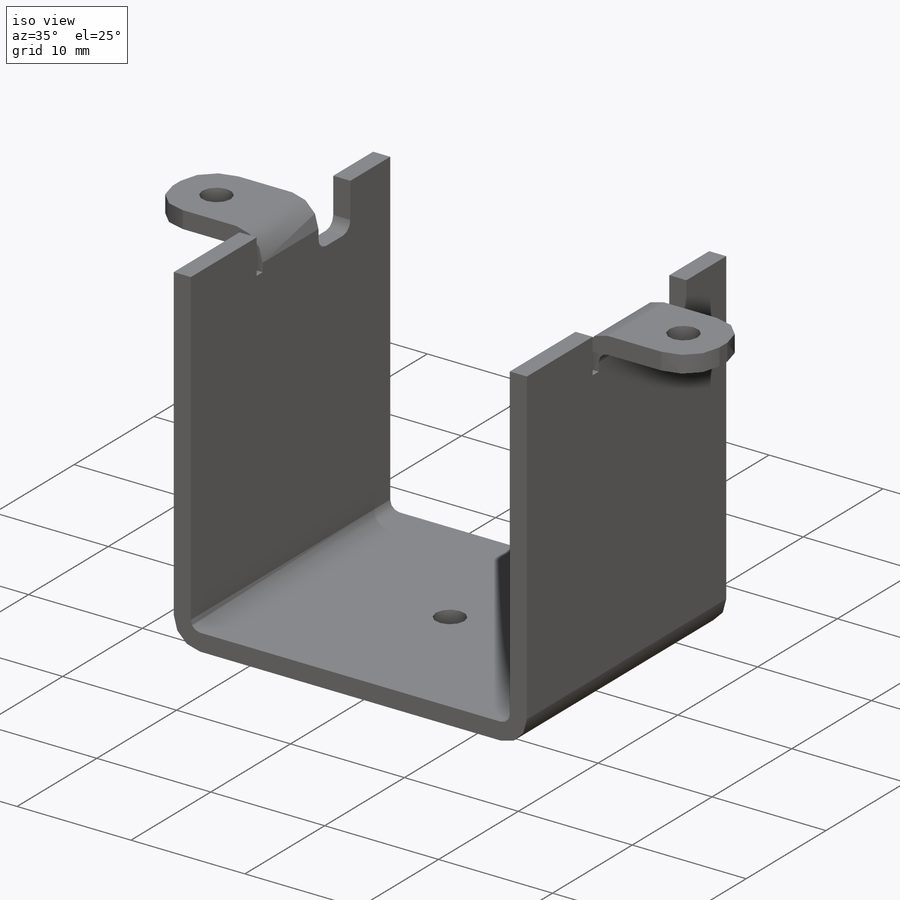
[diagram: iso view]
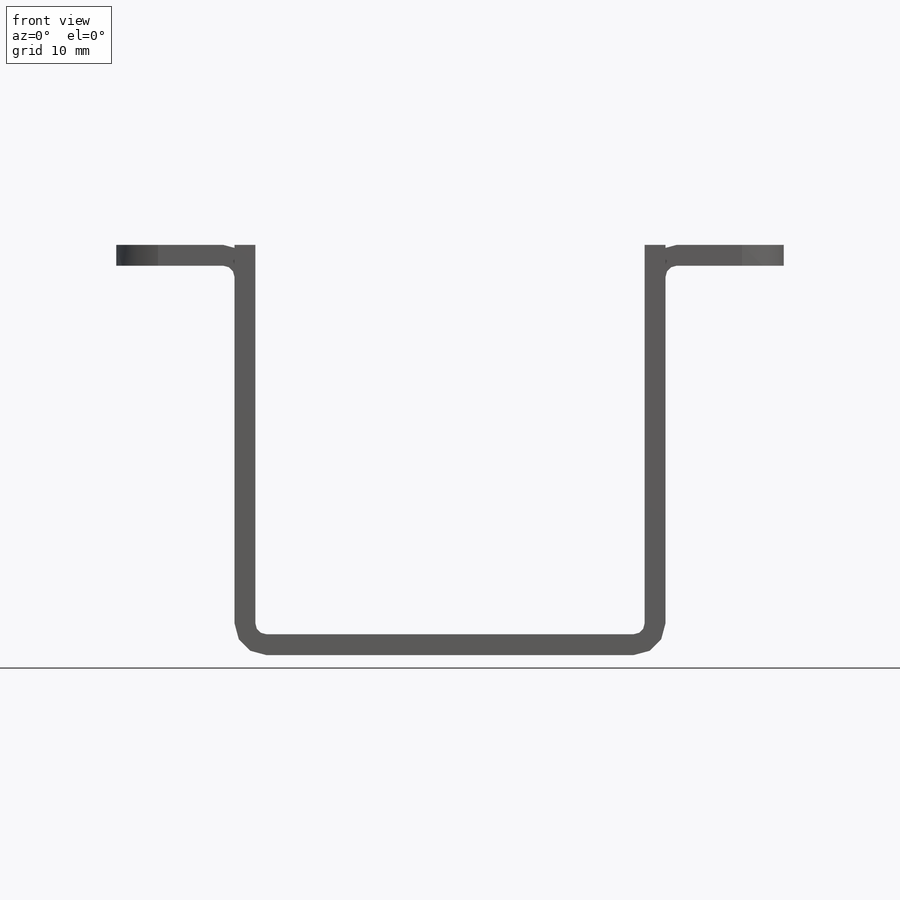
[diagram: front view]
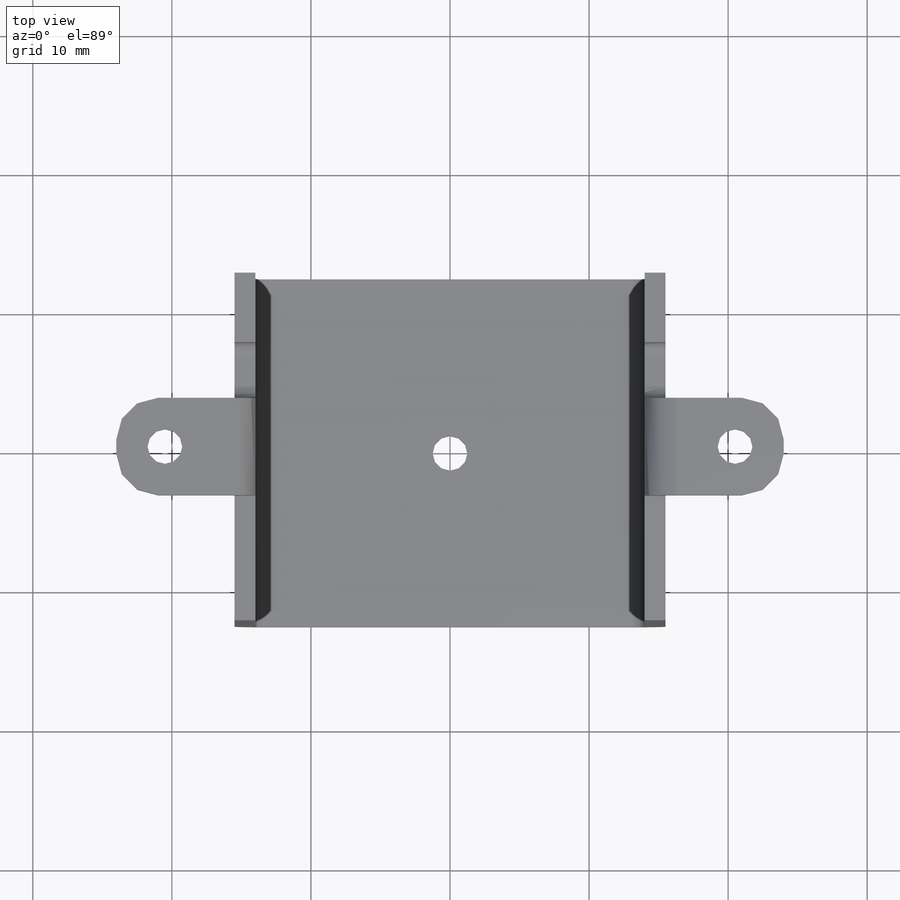
[diagram: top view]
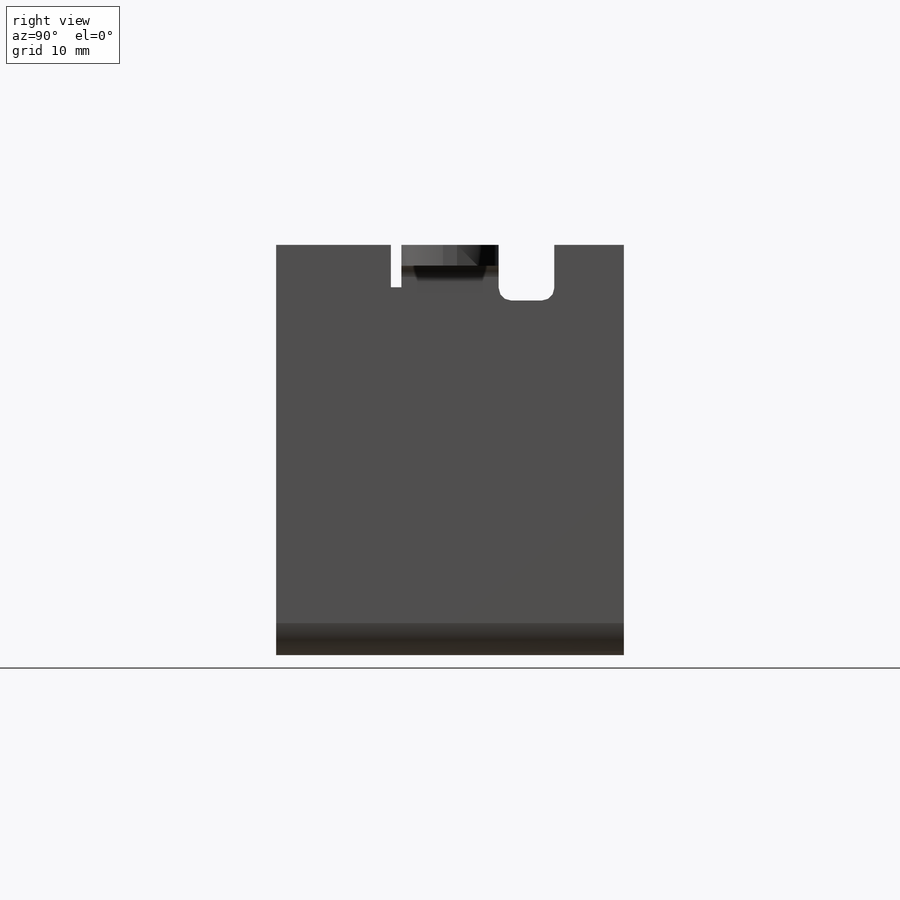
[diagram: right view]
SOLIDWORKS PART (.sldprt)
format: sldprt  version: not decoded by parser v0  size: 1,095,168 bytes
history: native  units: mm
features: sheet_metal_op x10, thread x6, plane x3, hole x3, sketch x2, material x1, cut_extrude x1, extrude x1 + 47 further entries (+10 scaffold rows collapsed)
feature tree (84):
  scaffold x10  (default folders/planes/origin — collapsed)
  material  "Материал <не указан>"
  plane  "Спереди"
  plane  "Сверху"
  plane  "Справа"
  sketch  "Эскиз1"  dims[c1.D1=21.0mm c1.D2=24.0mm c2.D1=28.0mm c3.D1=0.8mm c3.D2=0.41 c3.D3=0.0mm c3.D6=500.0mm]
  sheet_metal_op  "Базовая кромка1"
  "Эскиз15"
  "Эскиз17"
  sheet_metal_op  "EdgeBend4"
  sketch  "Ребро-кромка3"
  "Эскиз24"
  "Эскиз25"
  sheet_metal_op  "EdgeBend6"
  sheet_metal_op  "EdgeBend7"
  "Эскиз26"
  cut_extrude  "Вырез-Вытянуть2"  Depth=3mm
  hole  "Отверстие обработанное метчиком M3x0.51"  [1 undecoded]
  "Эскиз33"
  "Эскиз32"  4=25.4mm Диаметр проходного сверла=2.5mm Глубина проходного сверла=1.5mm
  thread  "Отверстие резьбы1"  Diameter=3mm  [1 undecoded]
  extrude  "Отверстие обработанное метчиком M3x0.52"  [1 undecoded]
  "Эскиз35"
  "Эскиз34"  4=25.4mm Диаметр проходного сверла=2.5mm Глубина проходного сверла=29.5mm
  hole  "Отверстие резьбы2"  Diameter=3mm
  hole  "Отверстие резьбы3"  Diameter=3mm
  "Сгиб-Линии1"
  "Граничная рамка1"
  sheet_metal_op  "Листовой металл3"
  "Развертка3"
  "Сгиб-Линии2"
  "Граничная рамка2"
  "Преобразование эскиза1"
  thread  "Листовой металл4"  Diameter=1mm  [1 undecoded]
  sheet_metal_op  "Развертка3"
  "Сгиб-Линии2"
  "Граничная рамка2"
  "Преобразование эскиза1"
  "Плоское состояние-<EdgeBend4>1"
  thread  "Листовой металл7"  Diameter=1mm  [1 undecoded]
  sheet_metal_op  "Развертка3"
  "Сгиб-Линии2"
  "Граничная рамка2"
  "Преобразование эскиза1"
  "Плоское состояние-<EdgeBend2>1"
  "Плоское состояние-<EdgeBend4>1"
  "Плоское состояние-<EdgeBend6>1"
  "Плоское состояние-<EdgeBend7>1"
  thread  "Листовой металл9"  Diameter=1mm  [1 undecoded]
  sheet_metal_op  "Развертка3"
  "Сгиб-Линии2"
  "Граничная рамка2"
  "Преобразование эскиза1"
  "Плоское состояние-<EdgeBend2>1"
  "Плоское состояние-<EdgeBend4>1"
  "Плоское состояние-<EdgeBend6>1"
  "Плоское состояние-<EdgeBend7>1"
  thread  "Листовой металл13"  Diameter=1mm  [1 undecoded]
  sheet_metal_op  "Развертка3"
  "Сгиб-Линии2"
  "Граничная рамка2"
  "Плоское состояние-<EdgeBend2>1"
  "Плоское состояние-<EdgeBend4>1"
  "Плоское состояние-<EdgeBend6>1"
  "Плоское состояние-<EdgeBend7>1"
  "Преобразование эскиза1"
  thread  "Листовой металл14"  Diameter=1mm  [1 undecoded]
  sheet_metal_op  "Развертка3"
  "Сгиб-Линии2"
  "Граничная рамка2"
  "Плоское состояние-<EdgeBend2>1"
  "Плоское состояние-<EdgeBend4>1"
  "Плоское состояние-<EdgeBend6>1"
  "Плоское состояние-<EdgeBend7>1"
  "Преобразование эскиза1"
decode coverage: 10 of 23 modeling features carry decoded parameters; 47 rows unclassified (native names shown)
note: 8 parameter values undecoded
note: suppression state not decoded; provenance and decode notes live in map.json
